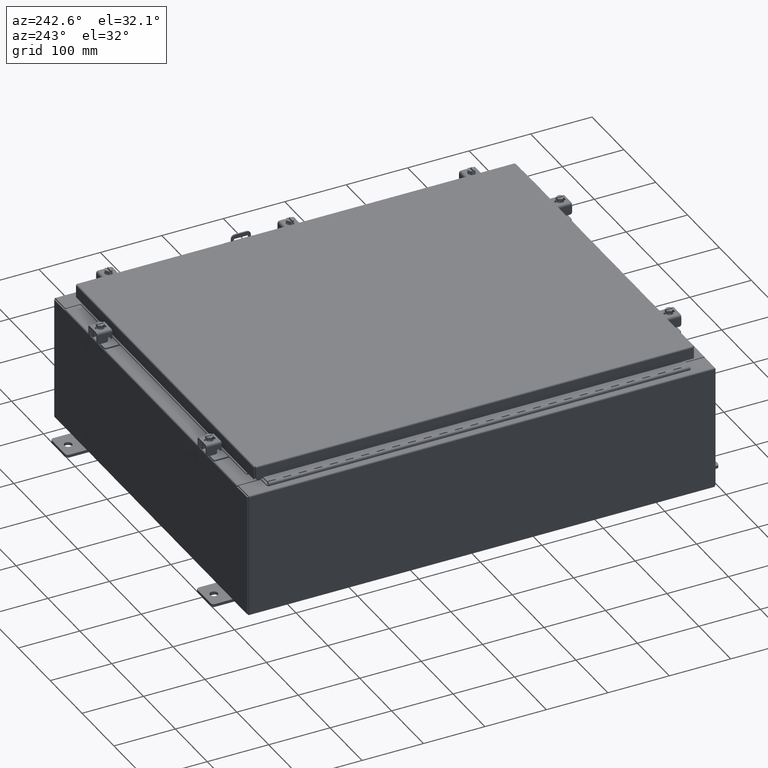
[diagram: clean part render]
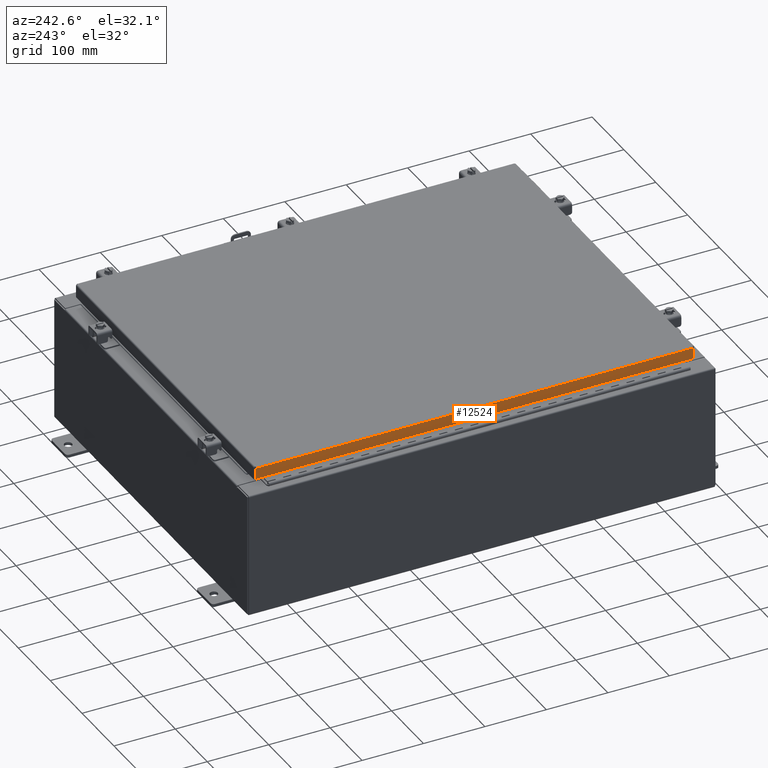
[diagram: same view with one face highlighted and labeled with its STEP entity id]
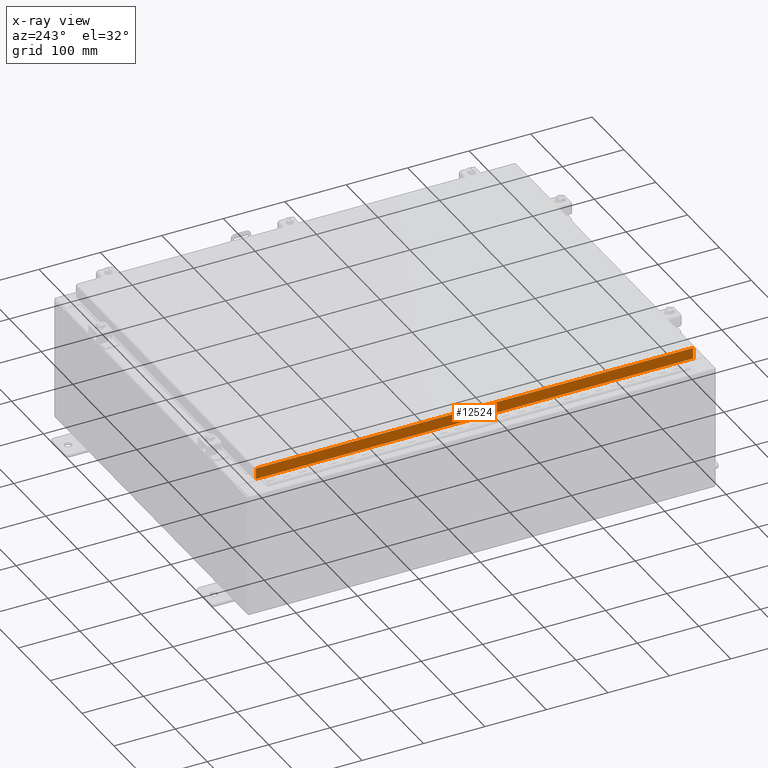
[diagram: x-ray of the same camera — body ghosted, the highlighted face saturated]
A machine part, auxiliary view. The second image highlights one B-rep face of the part: STEP entity #12524.
The next image is the same camera in x-ray: the body ghosted, the highlighted face saturated — about 0% of this face is hidden behind the body in this view.
In plain terms, the highlighted planar face has unit normal (1, 0, -0).
Its self-contained STEP definition (entity closure, byte-faithful):
#134 = ORIENTED_EDGE ( 'NONE', *, *, #6803, .F. ) ;
#350 = VERTEX_POINT ( 'NONE', #1017 ) ;
#1017 = CARTESIAN_POINT ( 'NONE',  ( -11.07800000000000300, 14.00515786437627400, -0.7949999999999962700 ) ) ;
#1227 = VECTOR ( 'NONE', #23401, 39.37007874015748100 ) ;
#1431 = VERTEX_POINT ( 'NONE', #9380 ) ;
#2055 = DIRECTION ( 'NONE',  ( 1.000000000000000000, 3.675660434206576600E-031, -3.034122441942816500E-015 ) ) ;
#2137 = LINE ( 'NONE', #26341, #1227 ) ;
#2488 = CARTESIAN_POINT ( 'NONE',  ( -11.07800000000000300, -14.00515786437626200, -0.7949999999999996000 ) ) ;
#2572 = LINE ( 'NONE', #27866, #32822 ) ;
#6803 = EDGE_CURVE ( 'NONE', #37258, #35645, #11224, .T. ) ;
#7813 = CARTESIAN_POINT ( 'NONE',  ( -11.07799999999999900, 14.00515786437626900, 1.311287036958846300E-013 ) ) ;
#9361 = VECTOR ( 'NONE', #28422, 39.37007874015748100 ) ;
#9380 = CARTESIAN_POINT ( 'NONE',  ( -11.07799999999999900, 14.00515786437626900, -0.08770000000000026400 ) ) ;
#10474 = DIRECTION ( 'NONE',  ( -3.034122441942816500E-015, 6.982962677686265900E-015, -1.000000000000000000 ) ) ;
#10886 = FACE_OUTER_BOUND ( 'NONE', #17783, .T. ) ;
#11224 = LINE ( 'NONE', #13402, #17185 ) ;
#12524 = ADVANCED_FACE ( 'NONE', ( #10886 ), #19568, .F. ) ;
#13268 = DIRECTION ( 'NONE',  ( 3.675660434206577100E-031, -1.000000000000000000, -1.083515668565077200E-045 ) ) ;
#13402 = CARTESIAN_POINT ( 'NONE',  ( -11.07799999999999900, -14.00515786437626500, -0.07470000000000015500 ) ) ;
#13663 = ORIENTED_EDGE ( 'NONE', *, *, #26443, .T. ) ;
#17185 = VECTOR ( 'NONE', #10474, 39.37007874015748100 ) ;
#17783 = EDGE_LOOP ( 'NONE', ( #37027, #13663, #36048, #134 ) ) ;
#19568 = PLANE ( 'NONE',  #24597 ) ;
#22531 = DIRECTION ( 'NONE',  ( -3.034122441942816500E-015, 0.0000000000000000000, -1.000000000000000000 ) ) ;
#22589 = CARTESIAN_POINT ( 'NONE',  ( -11.07799999999999900, -14.00515786437626400, -0.08770000000000026400 ) ) ;
#23401 = DIRECTION ( 'NONE',  ( -4.379057701015054300E-047, 1.000000000000000000, 1.211441035930299800E-016 ) ) ;
#23768 = EDGE_CURVE ( 'NONE', #35645, #350, #2137, .T. ) ;
#23995 = EDGE_CURVE ( 'NONE', #1431, #37258, #2572, .T. ) ;
#24597 = AXIS2_PLACEMENT_3D ( 'NONE', #28269, #2055, #22531 ) ;
#26341 = CARTESIAN_POINT ( 'NONE',  ( -11.07800000000000300, -14.09399999999999600, -0.7949999999999996000 ) ) ;
#26443 = EDGE_CURVE ( 'NONE', #1431, #350, #32751, .T. ) ;
#27866 = CARTESIAN_POINT ( 'NONE',  ( -11.07799999999999900, -14.09399999999999600, -0.08770000000000026400 ) ) ;
#28269 = CARTESIAN_POINT ( 'NONE',  ( -11.07799999999999900, 0.0000000000000000000, 3.387491512143686600E-014 ) ) ;
#28422 = DIRECTION ( 'NONE',  ( -3.034122441942816500E-015, 6.982962677686265900E-015, -1.000000000000000000 ) ) ;
#32751 = LINE ( 'NONE', #7813, #9361 ) ;
#32822 = VECTOR ( 'NONE', #13268, 39.37007874015748100 ) ;
#35645 = VERTEX_POINT ( 'NONE', #2488 ) ;
#36048 = ORIENTED_EDGE ( 'NONE', *, *, #23768, .F. ) ;
#37027 = ORIENTED_EDGE ( 'NONE', *, *, #23995, .F. ) ;
#37258 = VERTEX_POINT ( 'NONE', #22589 ) ;